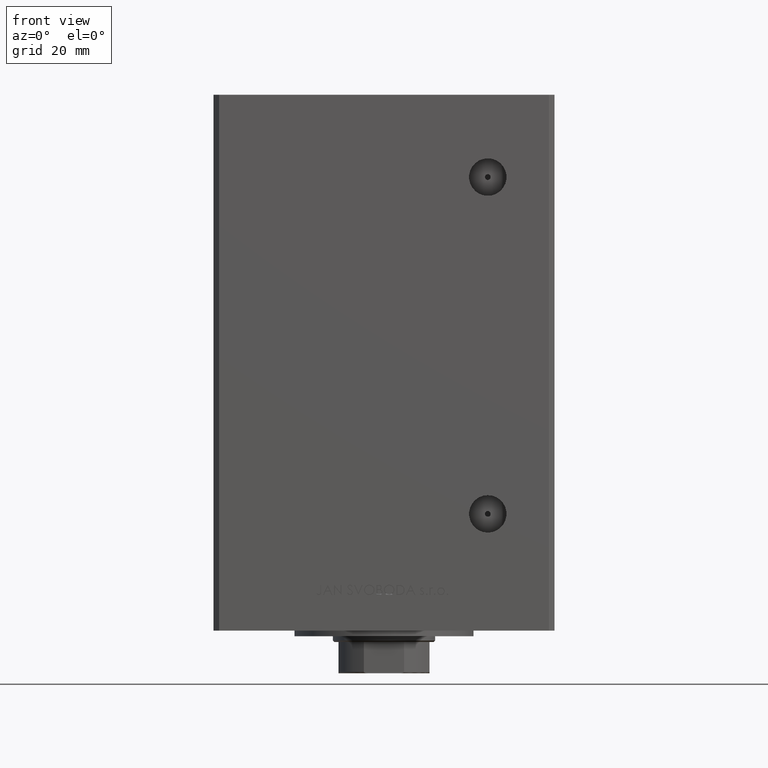
[diagram: clean part render]
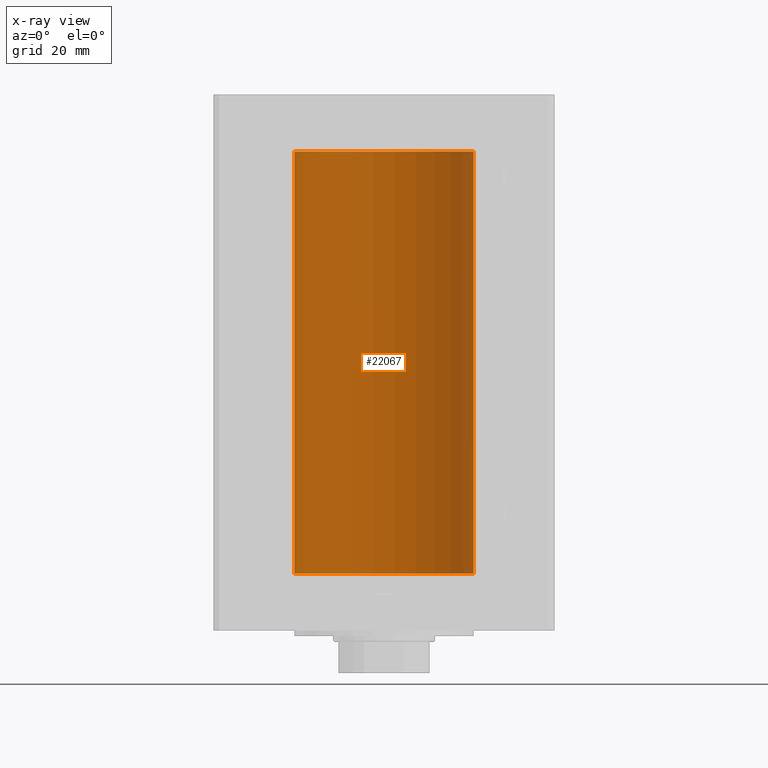
[diagram: x-ray — body ghosted, one internal face saturated and labeled with its STEP entity id]
A machine part, front view, then the same camera in x-ray: the body is ghosted and one INTERNAL B-rep face — a face not visible from any outside direction — is saturated and labeled: STEP entity #22067.
In plain terms, the highlighted cylindrical surface (partial cylindrical patch) has radius 31.5 mm, axis along (-0, -0, -1).
Its self-contained STEP definition (entity closure, byte-faithful):
#1335 = CARTESIAN_POINT ( 'NONE',  ( 31.50000000000000000, 3.857637417314162689E-15, 0.000000000000000000 ) ) ;
#4830 = DIRECTION ( 'NONE',  ( -0.000000000000000000, -0.000000000000000000, -1.000000000000000000 ) ) ;
#7041 = EDGE_CURVE ( 'NONE', #10412, #20413, #17496, .T. ) ;
#8208 = EDGE_CURVE ( 'NONE', #10412, #33694, #43364, .T. ) ;
#8306 = CARTESIAN_POINT ( 'NONE',  ( 0.000000000000000000, 0.000000000000000000, 0.000000000000000000 ) ) ;
#8615 = CARTESIAN_POINT ( 'NONE',  ( 31.50000000000000000, 3.857637417314162689E-15, 148.5000000000000000 ) ) ;
#9717 = CARTESIAN_POINT ( 'NONE',  ( -31.50000000000000000, 0.000000000000000000, 148.5000000000000000 ) ) ;
#10412 = VERTEX_POINT ( 'NONE', #16976 ) ;
#10689 = CIRCLE ( 'NONE', #44693, 31.50000000000000000 ) ;
#10936 = CARTESIAN_POINT ( 'NONE',  ( 0.000000000000000000, 0.000000000000000000, 148.5000000000000000 ) ) ;
#13593 = DIRECTION ( 'NONE',  ( 1.000000000000000000, 0.000000000000000000, 0.000000000000000000 ) ) ;
#14662 = CARTESIAN_POINT ( 'NONE',  ( -31.50000000000000000, 0.000000000000000000, 0.000000000000000000 ) ) ;
#14750 = DIRECTION ( 'NONE',  ( -1.000000000000000000, 0.000000000000000000, 0.000000000000000000 ) ) ;
#16976 = CARTESIAN_POINT ( 'NONE',  ( 31.50000000000000000, 3.857637417314162689E-15, 148.5000000000000000 ) ) ;
#17083 = DIRECTION ( 'NONE',  ( -0.000000000000000000, -0.000000000000000000, -1.000000000000000000 ) ) ;
#17496 = CIRCLE ( 'NONE', #28000, 31.50000000000000000 ) ;
#20413 = VERTEX_POINT ( 'NONE', #46865 ) ;
#22067 = ADVANCED_FACE ( 'NONE', ( #49505 ), #31152, .F. ) ;
#25208 = ORIENTED_EDGE ( 'NONE', *, *, #43873, .T. ) ;
#27332 = DIRECTION ( 'NONE',  ( -0.000000000000000000, 0.000000000000000000, 1.000000000000000000 ) ) ;
#28000 = AXIS2_PLACEMENT_3D ( 'NONE', #48347, #36180, #13593 ) ;
#29712 = VERTEX_POINT ( 'NONE', #14662 ) ;
#30076 = ORIENTED_EDGE ( 'NONE', *, *, #33345, .F. ) ;
#31152 = CYLINDRICAL_SURFACE ( 'NONE', #43666, 31.50000000000000000 ) ;
#33345 = EDGE_CURVE ( 'NONE', #33694, #29712, #10689, .T. ) ;
#33694 = VERTEX_POINT ( 'NONE', #1335 ) ;
#34470 = ORIENTED_EDGE ( 'NONE', *, *, #7041, .T. ) ;
#36180 = DIRECTION ( 'NONE',  ( -0.000000000000000000, 0.000000000000000000, 1.000000000000000000 ) ) ;
#36985 = VECTOR ( 'NONE', #4830, 1000.000000000000000 ) ;
#43364 = LINE ( 'NONE', #8615, #36985 ) ;
#43666 = AXIS2_PLACEMENT_3D ( 'NONE', #10936, #45190, #14750 ) ;
#43873 = EDGE_CURVE ( 'NONE', #20413, #29712, #49036, .T. ) ;
#44693 = AXIS2_PLACEMENT_3D ( 'NONE', #8306, #27332, #49915 ) ;
#45190 = DIRECTION ( 'NONE',  ( -0.000000000000000000, -0.000000000000000000, -1.000000000000000000 ) ) ;
#46718 = VECTOR ( 'NONE', #17083, 1000.000000000000000 ) ;
#46865 = CARTESIAN_POINT ( 'NONE',  ( -31.50000000000000000, 0.000000000000000000, 148.5000000000000000 ) ) ;
#47531 = ORIENTED_EDGE ( 'NONE', *, *, #8208, .F. ) ;
#48347 = CARTESIAN_POINT ( 'NONE',  ( 0.000000000000000000, 0.000000000000000000, 148.5000000000000000 ) ) ;
#48440 = EDGE_LOOP ( 'NONE', ( #47531, #34470, #25208, #30076 ) ) ;
#49036 = LINE ( 'NONE', #9717, #46718 ) ;
#49505 = FACE_OUTER_BOUND ( 'NONE', #48440, .T. ) ;
#49915 = DIRECTION ( 'NONE',  ( 1.000000000000000000, 0.000000000000000000, 0.000000000000000000 ) ) ;